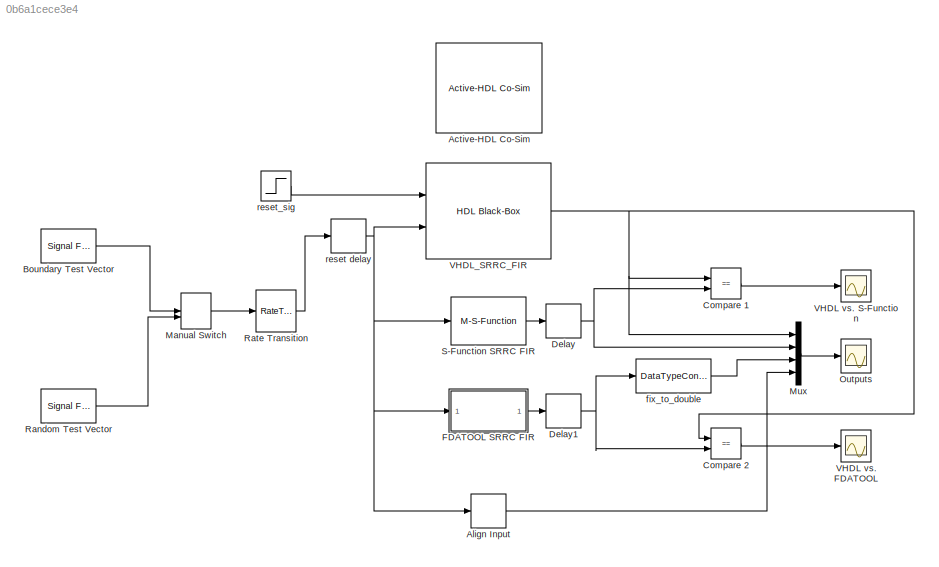
MODEL slx_0b6a1cece3e4
KIND model
CONFIG AbsTol = auto
CONFIG FixedStep = auto
CONFIG MaxStep = auto
CONFIG MinStep = auto
CONFIG RelTol = 1e-3
CONFIG SampleTimeConstraint = Unconstrained
CONFIG Solver = ode3
CONFIG SolverMode = Auto
CONFIG SolverName = ode3
CONFIG StartTime = 0.0
CONFIG StopTime = 0.5
BLOCK [Reference] Active-HDL Co-Sim  REF=aldec_ahdl/Active-HDL Co-Sim
  Ports = []
  SourceBlock = aldec_ahdl/Active-HDL Co-Sim
  SourceType = Active-HDL Simulation Manager
  Tag = Active-HDL_Co-Sim_close
BLOCK [Delay] Align Input
  DelayLength = 11
  InputPortMap = u0
  Ports = [1, 1]
BLOCK [Reference] Boundary Test Vector  REF=dspsrcs4/Signal From
Workspace
  Ports = [0, 1]
  SourceBlock = dspsrcs4/Signal From\nWorkspace
  SourceType = Signal From Workspace
BLOCK [RelationalOperator] Compare 1
  InputSameDT = off
  Operator = ==
  OutDataTypeStr = boolean
  Ports = [2, 1]
BLOCK [RelationalOperator] Compare 2
  InputSameDT = off
  Operator = ==
  OutDataTypeStr = boolean
  Ports = [2, 1]
BLOCK [Delay] Delay
  DelayLength = 1
  InputPortMap = u0
  Ports = [1, 1]
BLOCK [Delay] Delay1
  DelayLength = 1
  InputPortMap = u0
  Ports = [1, 1]
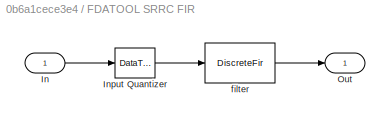
BLOCK [SubSystem] FDATOOL SRRC FIR
  Ports = [1, 1]
  RequestExecContextInheritance = off
  Tag = BlockMethodSubSystem
  Variant = off
BLOCK [Inport] FDATOOL SRRC FIR/In
  IconDisplay = Port number
BLOCK [DataTypeConversion] FDATOOL SRRC FIR/Input Quantizer
  OutDataTypeStr = fixdt(1,16,0)
  RndMeth = Round
BLOCK [Outport] FDATOOL SRRC FIR/Out
  IconDisplay = Port number
BLOCK [DiscreteFir] FDATOOL SRRC FIR/filter
  AccumDataTypeStr = fixdt(true,33,0)
  CoefDataTypeStr = fixdt(true,16,14)
  Coefficients = [-0.016500000000000001 -0.014999999999999999 0.0155 0.0424 0.0155 -0.074999999999999997 -0.15679999999999999 -0.1061 0.15679999999999999 0.5786 0.97450000000000003 1.1366000000000001 0.97450000000000003 0.5786 0.15679999999999999 -0.1061 -0.15679999999999999 -0.074999999999999997 0.0155 0.0424 0.0155 -0.014999999999999999 -0.016500000000000001]
  InputPortMap = u0
  OutDataTypeStr = fixdt(true,19,0)
  OutputPortMap = o0
  Ports = [1, 1]
  ProductDataTypeStr = fixdt(true,32,0)
BLOCK [ManualSwitch] Manual Switch
BLOCK [Mux] Mux
  DisplayOption = bar
  Ports = [4, 1]
BLOCK [Scope] Outputs
  Ports = [1]
  ScopeSpecificationString = Simulink.scopes.TimeScopeBlockCfg('CurrentConfiguration', extmgr.ConfigurationSet(extmgr.Configuration('Core','General UI',true,'FigureColor',[0 0 0]),extmgr.Configuration('Core','Source UI',true),extmgr.Configuration('Sources','WiredSimulink',true,'DataLoggingVariableName','out','DataLoggingDecimation','1','DataLoggingDecimateData',true,'DataLoggingSaveFormat','StructureWithTime'),extmgr.Configur...<+3074ch>
BLOCK [Reference] Random Test Vector  REF=dspsrcs4/Signal From
Workspace
  Ports = [0, 1]
  SourceBlock = dspsrcs4/Signal From\nWorkspace
  SourceType = Signal From Workspace
BLOCK [RateTransition] Rate Transition
BLOCK [M-S-Function] S-Function SRRC FIR
  FunctionName = srrc_fir_sfun
  Ports = [1, 1]
BLOCK [Scope] VHDL vs. FDATOOL
  Ports = [1]
  ScopeSpecificationString = Simulink.scopes.TimeScopeBlockCfg('CurrentConfiguration', extmgr.ConfigurationSet(extmgr.Configuration('Core','General UI',true),extmgr.Configuration('Core','Source UI',true),extmgr.Configuration('Sources','WiredSimulink',true,'DataLoggingLimitDataPoints',true,'DataLoggingVariableName','ScopeData2','DataLoggingDecimation','1','DataLoggingDecimateData',true,'DataLoggingSaveFormat','Array'),extmgr.C...<+1711ch>
BLOCK [Scope] VHDL vs. S-Function
  Ports = [1]
  ScopeSpecificationString = Simulink.scopes.TimeScopeBlockCfg('CurrentConfiguration', extmgr.ConfigurationSet(extmgr.Configuration('Core','General UI',true),extmgr.Configuration('Core','Source UI',true),extmgr.Configuration('Sources','WiredSimulink',true,'DataLoggingLimitDataPoints',true,'DataLoggingVariableName','ScopeData1','DataLoggingDecimation','1','DataLoggingDecimateData',true,'DataLoggingSaveFormat','Array'),extmgr.C...<+1725ch>
BLOCK [Reference] VHDL_SRRC_FIR  REF=aldec_ahdl/HDL Black-Box
  Ports = [2, 1]
  SourceBlock = aldec_ahdl/HDL Black-Box
  SourceType = Active-HDL Block
  Tag = Active-HDL_BB_lib
BLOCK [DataTypeConversion] fix_to_double
  RndMeth = Floor
  SaturateOnIntegerOverflow = off
BLOCK [Delay] reset delay
  InputPortMap = u0
  Ports = [1, 1]
BLOCK [Step] reset_sig
  After = 0
  Before = 1
  SampleTime = 0
  Time = 0.01
LINE Align Input:1 -> Mux:4
LINE Boundary Test Vector:1 -> Manual Switch:1
LINE Compare 1:1 -> VHDL vs. S-Function:1
LINE Compare 2:1 -> VHDL vs. FDATOOL:1
NET Delay1:1 -> Compare 2:2, fix_to_double:1
NET Delay:1 -> Compare 1:2, Mux:2
LINE FDATOOL SRRC FIR/In:1 -> FDATOOL SRRC FIR/Input Quantizer:1
LINE FDATOOL SRRC FIR/Input Quantizer:1 -> FDATOOL SRRC FIR/filter:1
LINE FDATOOL SRRC FIR/filter:1 -> FDATOOL SRRC FIR/Out:1
LINE FDATOOL SRRC FIR:1 -> Delay1:1
LINE Manual Switch:1 -> Rate Transition:1
LINE Mux:1 -> Outputs:1
LINE Random Test Vector:1 -> Manual Switch:2
LINE Rate Transition:1 -> reset delay:1
LINE S-Function SRRC FIR:1 -> Delay:1
NET VHDL_SRRC_FIR:1 -> Compare 1:1, Compare 2:1, Mux:1
LINE fix_to_double:1 -> Mux:3
NET reset delay:1 -> Align Input:1, FDATOOL SRRC FIR:1, S-Function SRRC FIR:1, VHDL_SRRC_FIR:2
LINE reset_sig:1 -> VHDL_SRRC_FIR:1
note: NET lines group one-source signal fan-out (src -> all destinations, sorted); 1:1 wires keep LINE
